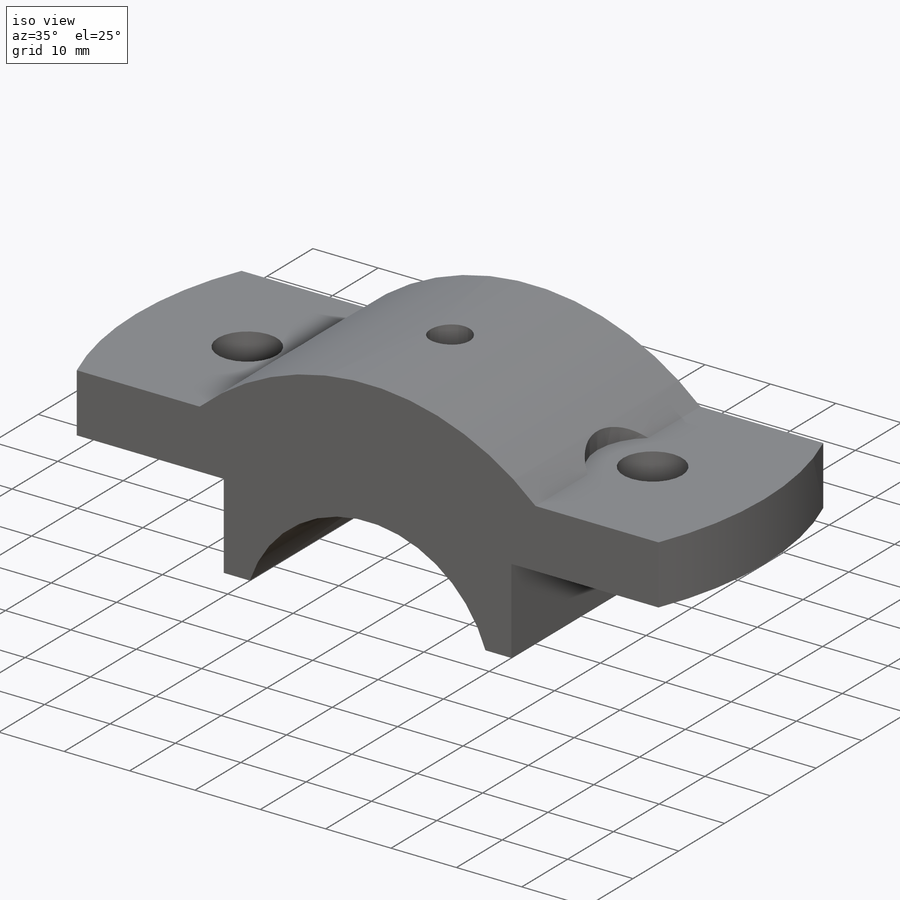
[diagram: iso view]
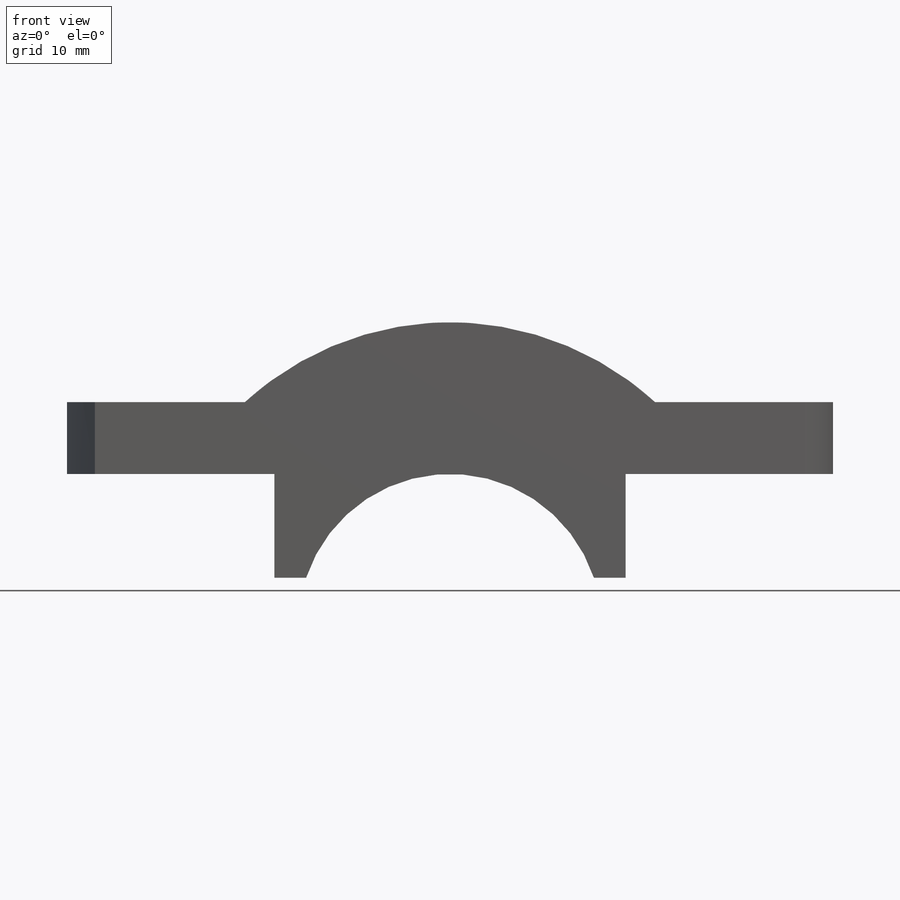
[diagram: front view]
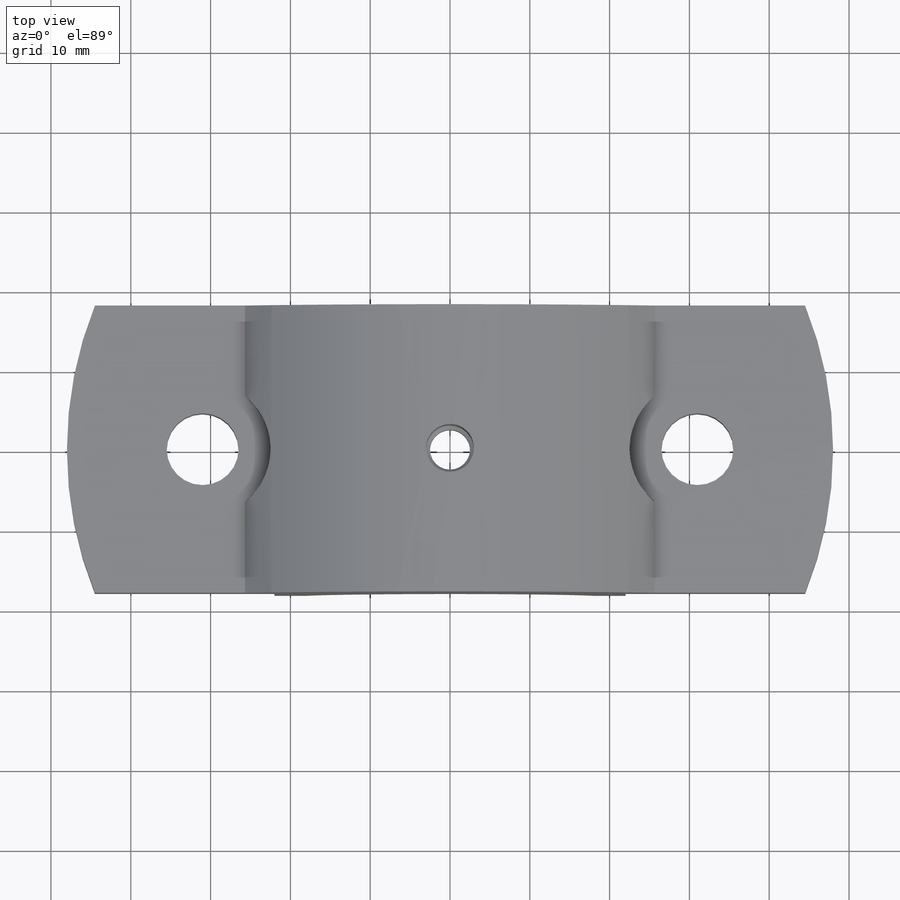
[diagram: top view]
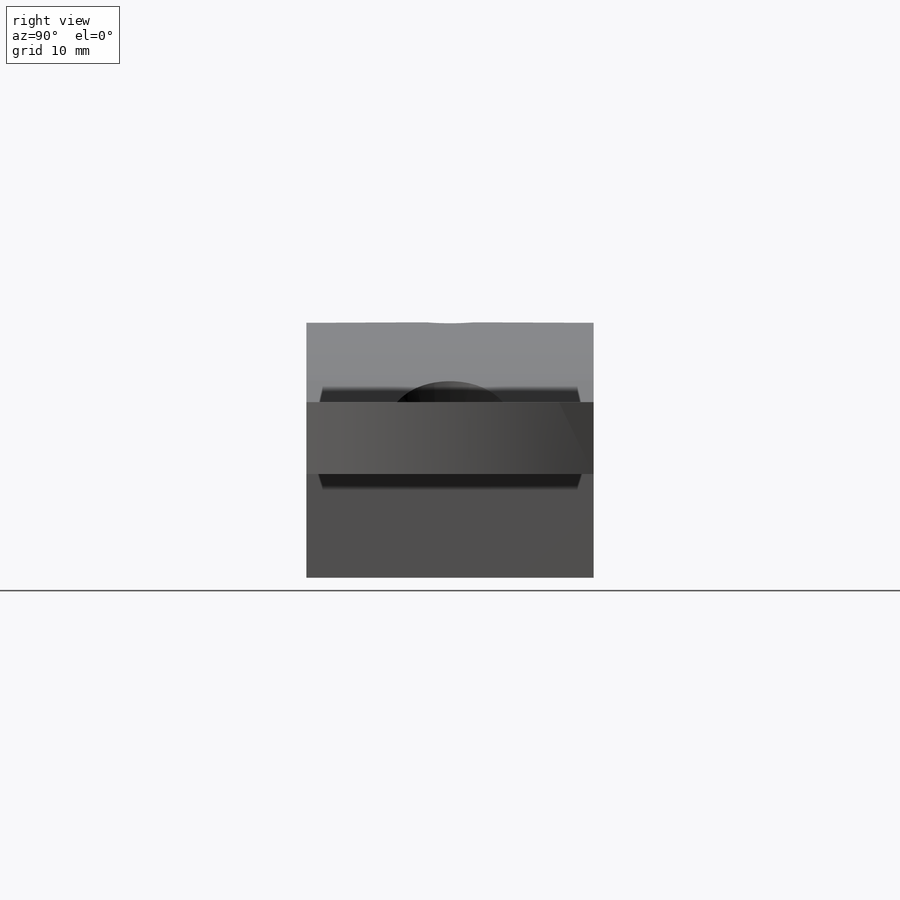
[diagram: right view]
SOLIDWORKS PART (.sldprt)
format: sldprt  version: not decoded by parser v0  size: 519,168 bytes
history: native  units: mm
features: sketch x7, cut_extrude x2, hole x2, mirror x2, material x1, extrude x1 + 1 further entry (+11 scaffold rows collapsed)
feature tree (27):
  scaffold x11  (default folders/planes/origin — collapsed)
  material  "Material <not specified>"
  "Annotations"  RD1=19mm
  sketch  "Sketch1"  dims[D1=19.0mm D2=38.0mm D3=6.0mm D4=13.0mm D5=9.0mm D6=44.0mm D7=50.0mm]
  extrude  "Boss-Extrude1"  Depth=36mm
  sketch  "Sketch2"  dims[D1=48.0mm]
  cut_extrude  "Cut-Extrude1"  Depth=9mm
  hole  "Ø16.0mm Dowel Hole21"  Diameter=9mm Depth=9mm
  sketch  "Sketch74"  dims[D1=31.0mm D2=31.0mm]
  sketch  "Sketch73"  dims[hole-wizard template sketch: 46 standard entries collapsed; hole parameters kept: c15.Hole Dia.=9.0mm c15.Hole Depth=9.0mm c15.D3=~14.816244mm c15.Drill Angle=118.0deg]
  sketch  "3DSketch2"  dims[c1.D1=~14.431788mm c1.D2=~14.431788mm c2.D1=8.5mm]
  cut_extrude  "Cut-Extrude2"  [1 undecoded]
  mirror  "Mirror2"
  hole  "CBORE for M6 Hex Head Machine Screw4"  Diameter=5mm Depth=32mm
  sketch  "3DSketch13"  dims[D1=0.0mm D2=0.0mm]
  sketch  "Sketch85"  dims[hole-wizard template sketch: 42 standard entries collapsed; hole parameters kept: c12.Thru Hole Depth=32.0mm c12.C'Bore Dia.=6.0mm c12.C'Bore Depth=13.0mm c12.Mid C'Sink Dia.=5.99mm c12.D6=~5.388154mm c12.Mid C'Sink Angle=90.0deg]
  mirror  "Mirror4"
decode coverage: 11 of 14 modeling features carry decoded parameters; 1 rows unclassified (native names shown)
note: ~ marks probable driven/reference dimensions
note: 1 parameter value undecoded
note: suppression state not decoded; provenance and decode notes live in map.json
